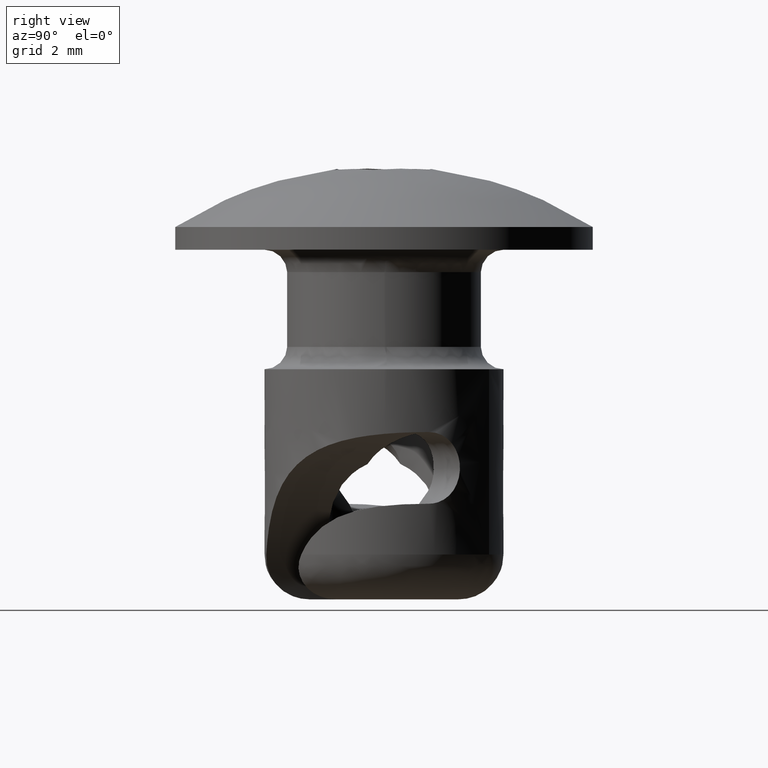
[diagram: clean part render]
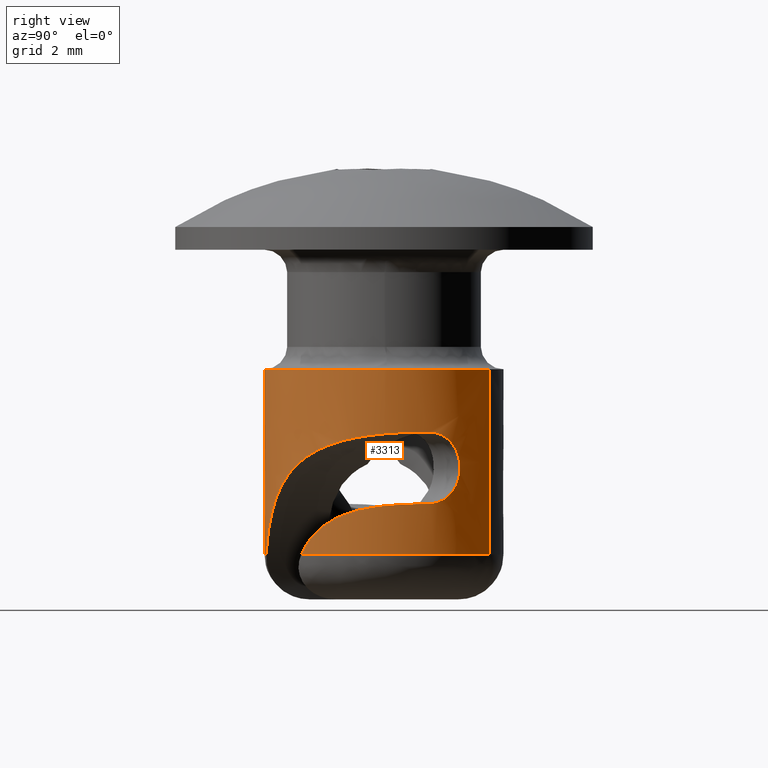
[diagram: same view with one face highlighted and labeled with its STEP entity id]
A machine part, right view. The second image highlights one B-rep face of the part: STEP entity #3313.
In plain terms, the highlighted face is a freeform B-spline surface patch.
Its self-contained STEP definition (entity closure, byte-faithful):
#923=CARTESIAN_POINT('',(3.998738795728591,0.100520433034861,3.658265999999916));
#924=VERTEX_POINT('',#923);
#938=CARTESIAN_POINT('',(1.908641485124764,3.515267261082327,3.658265999999905));
#939=VERTEX_POINT('',#938);
#940=CARTESIAN_POINT('',(1.908641485124764,3.515267261082327,3.658265999999905));
#941=CARTESIAN_POINT('',(3.940633201038001,2.411981684536025,3.658265999999910));
#942=CARTESIAN_POINT('',(3.998738795728591,0.100520433034861,3.658265999999915));
#950=(BOUNDED_CURVE()B_SPLINE_CURVE(2,(#940,#941,#942),.UNSPECIFIED.,.F.,.U.)B_SPLINE_CURVE_WITH_KNOTS((3,3),(0.331244701574616,0.495579891769142),.UNSPECIFIED.)CURVE()GEOMETRIC_REPRESENTATION_ITEM()RATIONAL_B_SPLINE_CURVE((0.871497445752740,0.804103556929867,0.989826157680071))REPRESENTATION_ITEM(''));
#951=EDGE_CURVE('',#939,#924,#950,.T.);
#1026=CARTESIAN_POINT('',(-1.908641485124764,-3.515267261082327,3.658265999999904));
#1027=VERTEX_POINT('',#1026);
#1041=CARTESIAN_POINT('',(4.000002039269875,0.0,3.658265999999915));
#1042=VERTEX_POINT('',#1041);
#1043=CARTESIAN_POINT('',(4.000002039269875,0.0,3.658265999999915));
#1044=CARTESIAN_POINT('',(4.000002040662801,-4.000002036704778,3.658265999999912));
#1045=CARTESIAN_POINT('',(3.748948E-009,-4.000002032392859,3.658265999999907));
#1046=CARTESIAN_POINT('',(-1.015874415805972,-4.000002031297769,3.658265999999905));
#1047=CARTESIAN_POINT('',(-1.908641485124764,-3.515267261082327,3.658265999999905));
#1055=(BOUNDED_CURVE()B_SPLINE_CURVE(2,(#1043,#1044,#1045,#1046,#1047),.UNSPECIFIED.,.F.,.U.)B_SPLINE_CURVE_WITH_KNOTS((3,2,3),(0.500000000000000,0.750000000000000,0.831244701574616),.UNSPECIFIED.)CURVE()GEOMETRIC_REPRESENTATION_ITEM()RATIONAL_B_SPLINE_CURVE((1.0,0.707106781186547,1.0,0.904815911377090,0.871497445752740))REPRESENTATION_ITEM(''));
#1056=EDGE_CURVE('',#1042,#1027,#1055,.T.);
#1058=CARTESIAN_POINT('',(3.998738795728591,0.100520433034861,3.658265999999915));
#1059=CARTESIAN_POINT('',(4.000002039254836,0.050268154128324,3.658265999999916));
#1060=CARTESIAN_POINT('',(4.000002039269875,0.0,3.658265999999915));
#1068=(BOUNDED_CURVE()B_SPLINE_CURVE(2,(#1058,#1059,#1060),.UNSPECIFIED.,.F.,.U.)B_SPLINE_CURVE_WITH_KNOTS((3,3),(0.495579891769142,0.500000000000000),.UNSPECIFIED.)CURVE()GEOMETRIC_REPRESENTATION_ITEM()RATIONAL_B_SPLINE_CURVE((0.989826157680071,0.994821521091040,1.0))REPRESENTATION_ITEM(''));
#1069=EDGE_CURVE('',#924,#1042,#1068,.T.);
#1648=CARTESIAN_POINT('',(3.708740166087705,1.498420013743142,-0.841730999939025));
#1649=VERTEX_POINT('',#1648);
#1892=CARTESIAN_POINT('',(0.683457335295949,-3.941180308982780,-2.541731000000000));
#1893=VERTEX_POINT('',#1892);
#1975=CARTESIAN_POINT('',(3.708740166083640,1.498420013741502,1.558268999999575));
#1976=VERTEX_POINT('',#1975);
#2008=CARTESIAN_POINT('',(3.708740166083640,1.498420013741502,1.558268999999575));
#2009=CARTESIAN_POINT('',(3.778569791304251,1.325584671532400,1.558268926310413));
#2010=CARTESIAN_POINT('',(3.835544737591123,1.149955319841009,1.555841438661054));
#2011=CARTESIAN_POINT('',(3.924842532281934,0.793354755758289,1.545859758571299));
#2012=CARTESIAN_POINT('',(3.957161476546685,0.612382601381122,1.538307521203331));
#2013=CARTESIAN_POINT('',(3.981910076951256,0.382806738395347,1.524732209680433));
#2014=CARTESIAN_POINT('',(3.986073839992970,0.336722868838410,1.521807234873431));
#2015=CARTESIAN_POINT('',(3.992809314985936,0.244214500872936,1.515500743744076));
#2016=CARTESIAN_POINT('',(3.995380418801008,0.197729923926280,1.512113726741909));
#2017=CARTESIAN_POINT('',(4.000641647889419,0.058865855470330,1.501294828076237));
#2018=CARTESIAN_POINT('',(4.000914651434753,-0.033248649638662,1.493187167201507));
#2019=CARTESIAN_POINT('',(3.992325739143101,-0.308189559196727,1.465802736969386));
#2020=CARTESIAN_POINT('',(3.974091756436340,-0.489621612015336,1.443498334347831));
#2021=CARTESIAN_POINT('',(3.928433437282043,-0.758753253395824,1.401898655610911));
#2022=CARTESIAN_POINT('',(3.910153448908448,-0.847959016905674,1.386666904149529));
#2023=CARTESIAN_POINT('',(3.867440931754574,-1.025297580096417,1.353015746337207));
#2024=CARTESIAN_POINT('',(3.842907123760051,-1.113674477500729,1.334525606484988));
#2025=CARTESIAN_POINT('',(3.761458911071838,-1.372662523637082,1.274557836056701));
#2026=CARTESIAN_POINT('',(3.696473910584353,-1.538491198809079,1.228384917341388));
#2027=CARTESIAN_POINT('',(3.547373207993855,-1.856614624431016,1.120972639753128));
#2028=CARTESIAN_POINT('',(3.463245174804096,-2.008906009784941,1.059739879224203));
#2029=CARTESIAN_POINT('',(3.323896835717848,-2.226918177112874,0.954127929796877));
#2030=CARTESIAN_POINT('',(3.275633786675320,-2.297228692864334,0.916908431059180));
#2031=CARTESIAN_POINT('',(3.176564219712284,-2.432380753453650,0.838779737560332));
#2032=CARTESIAN_POINT('',(3.125655406097995,-2.497382362031900,0.797793663590341));
#2033=CARTESIAN_POINT('',(2.969392782382339,-2.684998985496439,0.668838745284312));
#2034=CARTESIAN_POINT('',(2.860511902192695,-2.800238120549239,0.574879402421092));
#2035=CARTESIAN_POINT('',(2.692212635019208,-2.959386543567108,0.420938058538352));
#2036=CARTESIAN_POINT('',(2.635112994889656,-3.010275875673838,0.367286458083727));
#2037=CARTESIAN_POINT('',(2.521036063565093,-3.106438235295280,0.256899568731535));
#2038=CARTESIAN_POINT('',(2.463930082032929,-3.151850552760747,0.200055546088063));
#2039=CARTESIAN_POINT('',(2.292860829637236,-3.280730737047148,0.024572318735112));
#2040=CARTESIAN_POINT('',(2.179152880917562,-3.356860644165184,-0.099012093316455));
#2041=CARTESIAN_POINT('',(2.010704615361362,-3.458523418059506,-0.294382743183772));
#2042=CARTESIAN_POINT('',(1.954905366494577,-3.490317037717115,-0.361173419322018));
#2043=CARTESIAN_POINT('',(1.844259748555736,-3.550024506335812,-0.498124319469589));
#2044=CARTESIAN_POINT('',(1.789656302548552,-3.577802465819442,-0.567993274616594));
#2045=CARTESIAN_POINT('',(1.522256496855823,-3.706633978738531,-0.922120931566506));
#2046=CARTESIAN_POINT('',(1.324605537405187,-3.778845564466567,-1.222661207132236));
#2047=CARTESIAN_POINT('',(1.058717785241710,-3.858457227504108,-1.699109089742207));
#2048=CARTESIAN_POINT('',(0.975193753849416,-3.880127158651566,-1.862221561470996));
#2049=CARTESIAN_POINT('',(0.819595854785332,-3.915948449567630,-2.197297461384053));
#2050=CARTESIAN_POINT('',(0.748103077534107,-3.929969807745976,-2.368032275091813));
#2051=CARTESIAN_POINT('',(0.683457335295949,-3.941180308982780,-2.541731000000000));
#2052=B_SPLINE_CURVE_WITH_KNOTS('',3,(#2008,#2009,#2010,#2011,#2012,#2013,#2014,#2015,#2016,#2017,#2018,#2019,#2020,#2021,#2022,#2023,#2024,#2025,#2026,#2027,#2028,#2029,#2030,#2031,#2032,#2033,#2034,#2035,#2036,#2037,#2038,#2039,#2040,#2041,#2042,#2043,#2044,#2045,#2046,#2047,#2048,#2049,#2050,#2051),.UNSPECIFIED.,.F.,.U.,(4,2,2,2,2,2,2,2,2,2,2,2,2,2,2,2,2,2,2,2,2,4),(0.0,0.062500000000000,0.125000000000000,0.140625000000000,0.156250000000000,0.187500000000000,0.250000000000000,0.281250000000000,0.312500000000000,0.375000000000000,0.437500000000000,0.468750000000000,0.500000000000000,0.562500000000000,0.593750000000000,0.625000000000000,0.687500000000000,0.718750000000000,0.750000000000000,0.875000000000000,0.937500000000000,1.0),.UNSPECIFIED.);
#2053=EDGE_CURVE('',#1976,#1893,#2052,.T.);
#2574=CARTESIAN_POINT('',(3.708740166083640,1.498420013741502,1.558268999999575));
#2575=CARTESIAN_POINT('',(3.679106845760851,1.571765460496412,1.558269000006246));
#2576=CARTESIAN_POINT('',(3.647632373273990,1.643410114039576,1.550522738601744));
#2577=CARTESIAN_POINT('',(3.597851403063700,1.748422741403206,1.527388838276870));
#2578=CARTESIAN_POINT('',(3.580732249203205,1.783204246691448,1.517675239519201));
#2579=CARTESIAN_POINT('',(3.546200037307134,1.850925747107199,1.494594291972183));
#2580=CARTESIAN_POINT('',(3.528827872078448,1.883803225459222,1.481277570557599));
#2581=CARTESIAN_POINT('',(3.476535241067272,1.979650781931786,1.436163751293167));
#2582=CARTESIAN_POINT('',(3.441427987799534,2.039857332027093,1.399255420676745));
#2583=CARTESIAN_POINT('',(3.371670143846766,2.153203420794110,1.311369004691567));
#2584=CARTESIAN_POINT('',(3.338131713205516,2.204554820526943,1.261780612069388));
#2585=CARTESIAN_POINT('',(3.290609786378405,2.274356101061116,1.179253191839117));
#2586=CARTESIAN_POINT('',(3.275234847547015,2.296411880071353,1.150373455932041));
#2587=CARTESIAN_POINT('',(3.245589400408710,2.338123237442040,1.089788993915140));
#2588=CARTESIAN_POINT('',(3.231302300758404,2.357796984494084,1.058008618396163));
#2589=CARTESIAN_POINT('',(3.191258071819068,2.412034030402509,0.960407950643800));
#2590=CARTESIAN_POINT('',(3.167965996092042,2.442332931432362,0.891730466580246));
#2591=CARTESIAN_POINT('',(3.138967381000468,2.479343778876347,0.783178167447507));
#2592=CARTESIAN_POINT('',(3.130272140236786,2.490292782871136,0.745942317893729));
#2593=CARTESIAN_POINT('',(3.115187691294435,2.509136796661367,0.670046773490470));
#2594=CARTESIAN_POINT('',(3.108867266962546,2.516947646791722,0.631772022990111));
#2595=CARTESIAN_POINT('',(3.093612201978966,2.535712845321366,0.515983554422981));
#2596=CARTESIAN_POINT('',(3.088362505049448,2.542052949073752,0.437485191446233));
#2597=CARTESIAN_POINT('',(3.088412243777651,2.541992519846659,0.277929766447847));
#2598=CARTESIAN_POINT('',(3.093706444051323,2.535597942198791,0.199583054818148));
#2599=CARTESIAN_POINT('',(3.108972378965428,2.516817829349759,0.084098126603380));
#2600=CARTESIAN_POINT('',(3.115287206067010,2.509013097992600,0.045944723151727));
#2601=CARTESIAN_POINT('',(3.130334026503381,2.490214847095408,-0.029669389381538));
#2602=CARTESIAN_POINT('',(3.139080312853259,2.479201145436326,-0.067109706202362));
#2603=CARTESIAN_POINT('',(3.168179094467574,2.442057918013027,-0.175895514873720));
#2604=CARTESIAN_POINT('',(3.191528629318678,2.411676763658318,-0.244615715425945));
#2605=CARTESIAN_POINT('',(3.231601503512901,2.357387068603007,-0.342156000803317));
#2606=CARTESIAN_POINT('',(3.245888657485096,2.337708085922140,-0.373898026234935));
#2607=CARTESIAN_POINT('',(3.275561107627609,2.295946798595223,-0.434465996072063));
#2608=CARTESIAN_POINT('',(3.290944544935773,2.273871823507884,-0.463327238402416));
#2609=CARTESIAN_POINT('',(3.338474801990703,2.204035797357474,-0.545776036010589));
#2610=CARTESIAN_POINT('',(3.371988774918902,2.152702610459202,-0.595272004786628));
#2611=CARTESIAN_POINT('',(3.441670758153674,2.039445811919162,-0.682983397923502));
#2612=CARTESIAN_POINT('',(3.476832913847198,1.979121796664001,-0.719909405613011));
#2613=CARTESIAN_POINT('',(3.528994957571936,1.883488586750370,-0.764870172568847));
#2614=CARTESIAN_POINT('',(3.546307581932390,1.850716325354229,-0.778130303551989));
#2615=CARTESIAN_POINT('',(3.580689552191615,1.783286492252162,-0.801106567150332));
#2616=CARTESIAN_POINT('',(3.597849077972695,1.748430097353226,-0.810853002372454));
#2617=CARTESIAN_POINT('',(3.647776121805171,1.643101964827726,-0.834045037484735));
#2618=CARTESIAN_POINT('',(3.679222580403043,1.571479005627981,-0.841730999929208));
#2619=CARTESIAN_POINT('',(3.708740166087705,1.498420013743142,-0.841730999939025));
#2620=B_SPLINE_CURVE_WITH_KNOTS('',3,(#2574,#2575,#2576,#2577,#2578,#2579,#2580,#2581,#2582,#2583,#2584,#2585,#2586,#2587,#2588,#2589,#2590,#2591,#2592,#2593,#2594,#2595,#2596,#2597,#2598,#2599,#2600,#2601,#2602,#2603,#2604,#2605,#2606,#2607,#2608,#2609,#2610,#2611,#2612,#2613,#2614,#2615,#2616,#2617,#2618,#2619),.UNSPECIFIED.,.F.,.U.,(4,2,2,2,2,2,2,2,2,2,2,2,2,2,2,2,2,2,2,2,2,2,4),(0.0,0.062500000000000,0.093750000000000,0.125000000000001,0.187500000000001,0.250000000000001,0.281250000000001,0.312500000000001,0.375000000000001,0.406250000000001,0.437500000000001,0.500000000000001,0.562500000000001,0.593750000000001,0.625000000000001,0.687500000000001,0.718750000000001,0.750000000000001,0.812500000000001,0.875000000000001,0.906250000000000,0.937500000000000,1.0),.UNSPECIFIED.);
#2621=EDGE_CURVE('',#1976,#1649,#2620,.T.);
#2698=CARTESIAN_POINT('',(-1.908643068549767,-3.515266381128359,-2.541731000000000));
#2699=VERTEX_POINT('',#2698);
#2700=CARTESIAN_POINT('',(0.683457335295949,-3.941180308982780,-2.541731000000000));
#2701=CARTESIAN_POINT('',(-0.686623547545390,-4.178772027887591,-2.541731000000000));
#2702=CARTESIAN_POINT('',(-1.908643068549767,-3.515266381128359,-2.541731000000000));
#2710=(BOUNDED_CURVE()B_SPLINE_CURVE(2,(#2700,#2701,#2702),.UNSPECIFIED.,.F.,.U.)B_SPLINE_CURVE_WITH_KNOTS((3,3),(0.0,0.266260725077179),.UNSPECIFIED.)CURVE()GEOMETRIC_REPRESENTATION_ITEM()RATIONAL_B_SPLINE_CURVE((1.0,0.898721098555845,0.905308572045853))REPRESENTATION_ITEM(''));
#2711=EDGE_CURVE('',#1893,#2699,#2710,.T.);
#3223=CARTESIAN_POINT('',(1.908642749977136,3.515266563156077,3.813265924999927));
#3224=CARTESIAN_POINT('',(5.423909313133214,1.606623813178941,3.813265924999926));
#3225=CARTESIAN_POINT('',(3.515266563156077,-1.908642749977136,3.813265924999927));
#3226=CARTESIAN_POINT('',(1.606623813178941,-5.423909313133214,3.813265924999926));
#3227=CARTESIAN_POINT('',(-1.908642749977136,-3.515266563156077,3.813265924999927));
#3228=CARTESIAN_POINT('',(1.908642749977136,3.515266563156077,-2.700605923125481));
#3229=CARTESIAN_POINT('',(5.423909313133214,1.606623813178941,-2.700605923125481));
#3230=CARTESIAN_POINT('',(3.515266563156077,-1.908642749977136,-2.700605923125481));
#3231=CARTESIAN_POINT('',(1.606623813178941,-5.423909313133214,-2.700605923125481));
#3232=CARTESIAN_POINT('',(-1.908642749977136,-3.515266563156077,-2.700605923125481));
#3240=(BOUNDED_SURFACE()B_SPLINE_SURFACE(2,1,((#3223,#3228),(#3224,#3229),(#3225,#3230),(#3226,#3231),(#3227,#3232)),.UNSPECIFIED.,.F.,.F.,.U.)B_SPLINE_SURFACE_WITH_KNOTS((3,2,3),(2,2),(0.0,6.627420344210218,13.254840688420440),(0.0,6.513871848125408),.UNSPECIFIED.)GEOMETRIC_REPRESENTATION_ITEM()RATIONAL_B_SPLINE_SURFACE(((1.0,1.0),(0.707106781186548,0.707106781186548),(1.0,1.0),(0.707106781186548,0.707106781186548),(1.0,1.0)))REPRESENTATION_ITEM('')SURFACE());
#3241=ORIENTED_EDGE('',*,*,#951,.T.);
#3242=ORIENTED_EDGE('',*,*,#1069,.T.);
#3243=ORIENTED_EDGE('',*,*,#1056,.T.);
#3244=CARTESIAN_POINT('',(-1.908641485124764,-3.515267261082327,3.658265999999904));
#3245=CARTESIAN_POINT('',(-1.908643068549767,-3.515266381128359,-2.541731000000000));
#3246=QUASI_UNIFORM_CURVE('',1,(#3244,#3245),.UNSPECIFIED.,.F.,.U.);
#3247=EDGE_CURVE('',#1027,#2699,#3246,.T.);
#3248=ORIENTED_EDGE('',*,*,#3247,.T.);
#3249=ORIENTED_EDGE('',*,*,#2711,.F.);
#3250=ORIENTED_EDGE('',*,*,#2053,.F.);
#3251=ORIENTED_EDGE('',*,*,#2621,.T.);
#3252=CARTESIAN_POINT('',(2.884555229671560,-2.771165301272810,-2.541731000000470));
#3253=VERTEX_POINT('',#3252);
#3254=CARTESIAN_POINT('',(3.708740166087705,1.498420013743142,-0.841730999939025));
#3255=CARTESIAN_POINT('',(3.789603342791144,1.298275522429608,-0.841731085191807));
#3256=CARTESIAN_POINT('',(3.853266608022810,1.094363711314457,-0.844898699676443));
#3257=CARTESIAN_POINT('',(3.947624874398888,0.679377164730653,-0.858888886197776));
#3258=CARTESIAN_POINT('',(3.978314908902414,0.468300505837207,-0.869689622124149));
#3259=CARTESIAN_POINT('',(3.998773955492134,0.146262357777929,-0.895468754313138));
#3260=CARTESIAN_POINT('',(4.001214435422662,0.039356055029594,-0.905592794241450));
#3261=CARTESIAN_POINT('',(3.997677503401655,-0.172743829529583,-0.929588470703939));
#3262=CARTESIAN_POINT('',(3.991706842258767,-0.278059572015481,-0.943468917006924));
#3263=CARTESIAN_POINT('',(3.961579676277355,-0.591608507315546,-0.992173819946083));
#3264=CARTESIAN_POINT('',(3.925240589785184,-0.797473242374722,-1.033901799248115));
#3265=CARTESIAN_POINT('',(3.860135973660297,-1.049801262182772,-1.104303979249857));
#3266=CARTESIAN_POINT('',(3.846160973754780,-1.099865145250514,-1.119274116367589));
#3267=CARTESIAN_POINT('',(3.816631997633515,-1.198322896425308,-1.150875348232526));
#3268=CARTESIAN_POINT('',(3.801046300725306,-1.246842307484312,-1.167540746194665));
#3269=CARTESIAN_POINT('',(3.751988769043545,-1.390254244868270,-1.220316447285558));
#3270=CARTESIAN_POINT('',(3.716216162029630,-1.483002367819351,-1.259201711167357));
#3271=CARTESIAN_POINT('',(3.639395182733261,-1.662636845654947,-1.345457747218364));
#3272=CARTESIAN_POINT('',(3.598344842298542,-1.749523326162997,-1.392826489075761));
#3273=CARTESIAN_POINT('',(3.533479603993703,-1.875303522526045,-1.471180455769298));
#3274=CARTESIAN_POINT('',(3.511259477338317,-1.916552436971512,-1.498584499654451));
#3275=CARTESIAN_POINT('',(3.466426671580434,-1.996497554886799,-1.555254974171290));
#3276=CARTESIAN_POINT('',(3.443755817943397,-2.035314400837088,-1.584589094828814));
#3277=CARTESIAN_POINT('',(3.329540518945868,-2.223794195843657,-1.736356739794283));
#3278=CARTESIAN_POINT('',(3.235430647707433,-2.356708378572297,-1.874027955967956));
#3279=CARTESIAN_POINT('',(3.120600981695310,-2.502647577831641,-2.068504378930844));
#3280=CARTESIAN_POINT('',(3.097723793038404,-2.530882099920718,-2.108617462539968));
#3281=CARTESIAN_POINT('',(3.052670196831342,-2.585045757211008,-2.190677628121291));
#3282=CARTESIAN_POINT('',(3.030528409444799,-2.610938036005936,-2.232554031894097));
#3283=CARTESIAN_POINT('',(2.965449095197074,-2.685230547071236,-2.360714131926008));
#3284=CARTESIAN_POINT('',(2.923857825347109,-2.730254531340305,-2.449524356297506));
#3285=CARTESIAN_POINT('',(2.884555229671560,-2.771165301272810,-2.541731000000470));
#3286=B_SPLINE_CURVE_WITH_KNOTS('',3,(#3254,#3255,#3256,#3257,#3258,#3259,#3260,#3261,#3262,#3263,#3264,#3265,#3266,#3267,#3268,#3269,#3270,#3271,#3272,#3273,#3274,#3275,#3276,#3277,#3278,#3279,#3280,#3281,#3282,#3283,#3284,#3285),.UNSPECIFIED.,.F.,.U.,(4,2,2,2,2,2,2,2,2,2,2,2,2,2,2,4),(0.0,0.125000000000000,0.250000000000000,0.312500000000000,0.375000000000000,0.500000000000000,0.531250000000001,0.562500000000001,0.625000000000001,0.687500000000001,0.718750000000001,0.750000000000001,0.875000000000001,0.906250000000000,0.937500000000000,1.0),.UNSPECIFIED.);
#3287=EDGE_CURVE('',#1649,#3253,#3286,.T.);
#3288=ORIENTED_EDGE('',*,*,#3287,.T.);
#3289=CARTESIAN_POINT('',(1.908643068549767,3.515266381128359,-2.541731000000000));
#3290=VERTEX_POINT('',#3289);
#3291=CARTESIAN_POINT('',(1.908643068549766,3.515266381128358,-2.541731000000000));
#3292=CARTESIAN_POINT('',(2.966838043183747,2.940710627283787,-2.541731000000055));
#3293=CARTESIAN_POINT('',(3.532011302466348,1.877474952365209,-2.541731000000138));
#3294=CARTESIAN_POINT('',(4.892194440281161,-0.681377952995390,-2.541731000000341));
#3295=CARTESIAN_POINT('',(2.884555229671560,-2.771165301272810,-2.541731000000470));
#3303=(BOUNDED_CURVE()B_SPLINE_CURVE(2,(#3291,#3292,#3293,#3294,#3295),.UNSPECIFIED.,.F.,.U.)B_SPLINE_CURVE_WITH_KNOTS((3,2,3),(0.266260725077177,0.500000000000000,1.0),.UNSPECIFIED.)CURVE()GEOMETRIC_REPRESENTATION_ITEM()RATIONAL_B_SPLINE_CURVE((0.905308572045853,0.911091442488655,1.0,0.809812541044501,1.0))REPRESENTATION_ITEM(''));
#3304=EDGE_CURVE('',#3290,#3253,#3303,.T.);
#3305=ORIENTED_EDGE('',*,*,#3304,.F.);
#3306=CARTESIAN_POINT('',(1.908641485124764,3.515267261082327,3.658265999999905));
#3307=CARTESIAN_POINT('',(1.908643068549767,3.515266381128359,-2.541731000000000));
#3308=QUASI_UNIFORM_CURVE('',1,(#3306,#3307),.UNSPECIFIED.,.F.,.U.);
#3309=EDGE_CURVE('',#939,#3290,#3308,.T.);
#3310=ORIENTED_EDGE('',*,*,#3309,.F.);
#3311=EDGE_LOOP('',(#3241,#3242,#3243,#3248,#3249,#3250,#3251,#3288,#3305,#3310));
#3312=FACE_OUTER_BOUND('',#3311,.T.);
#3313=ADVANCED_FACE('',(#3312),#3240,.T.);